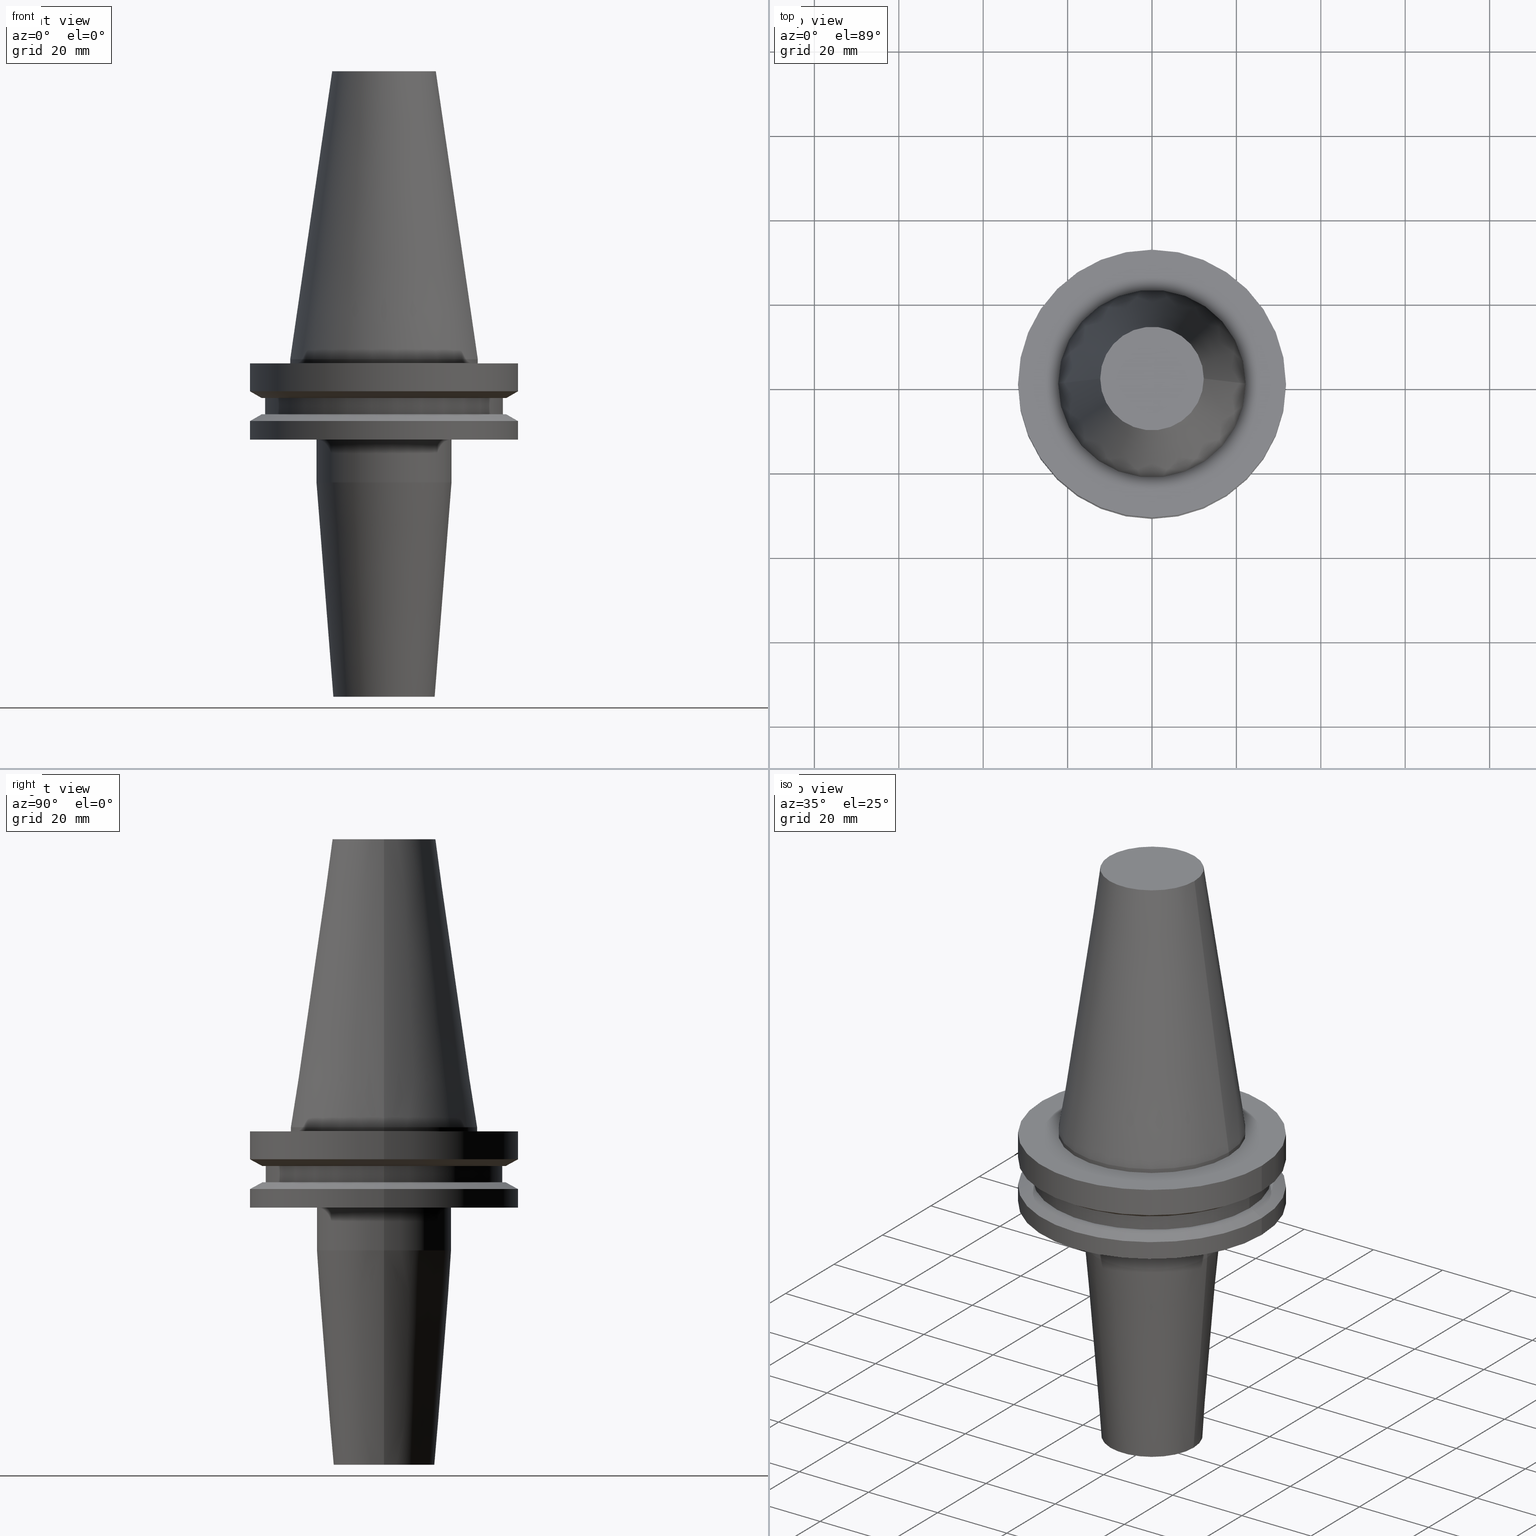
[diagram: canonical four-view strip — front | top / right | iso, engineering-drawing reading convention]
A machine part, canonical four-view strip (front | top / right | iso — engineering-drawing reading convention). The complete STEP part file that produces these views, byte-faithful:
ISO-10303-21;
HEADER;
FILE_DESCRIPTION (( 'STEP AP203' ),
    '1' );
FILE_NAME ('BCV40-SF10-80.STEP',
    '2022-02-23T17:13:12',
    ( '' ),
    ( '' ),
    'SwSTEP 2.0',
    'SolidWorks 2021',
    '' );
FILE_SCHEMA (( 'CONFIG_CONTROL_DESIGN' ));
ENDSEC;

DATA;
#1 = CC_DESIGN_DATE_AND_TIME_ASSIGNMENT ( #401, #222, ( #165 ) ) ;
#2 = EDGE_CURVE ( 'NONE', #573, #775, #335, .T. ) ;
#3 = ORIENTED_EDGE ( 'NONE', *, *, #526, .F. ) ;
#4 = CARTESIAN_POINT ( 'NONE',  ( 0.000000000000000000, 0.000000000000000000, -19.04999999999999716 ) ) ;
#5 = PLANE ( 'NONE',  #393 ) ;
#6 = LINE ( 'NONE', #327, #15 ) ;
#7 = DIRECTION ( 'NONE',  ( 1.000000000000000000, 0.000000000000000000, 0.000000000000000000 ) ) ;
#8 = DIRECTION ( 'NONE',  ( -0.000000000000000000, -0.000000000000000000, 1.000000000000000000 ) ) ;
#9 = CARTESIAN_POINT ( 'NONE',  ( 0.000000000000000000, 0.000000000000000000, 68.25000000000000000 ) ) ;
#10 = VECTOR ( 'NONE', #546, 1000.000000000000000 ) ;
#11 = VECTOR ( 'NONE', #24, 1000.000000000000000 ) ;
#12 = DIRECTION ( 'NONE',  ( 1.000000000000000000, 0.000000000000000000, 0.000000000000000000 ) ) ;
#13 = FACE_OUTER_BOUND ( 'NONE', #513, .T. ) ;
#14 = CARTESIAN_POINT ( 'NONE',  ( 0.000000000000000000, 31.75000000000000000, -0.9999999999999995559 ) ) ;
#15 = VECTOR ( 'NONE', #260, 1000.000000000000000 ) ;
#16 = CARTESIAN_POINT ( 'NONE',  ( 0.000000000000000000, 0.000000000000000000, 0.000000000000000000 ) ) ;
#17 = DIRECTION ( 'NONE',  ( -0.000000000000000000, -0.000000000000000000, 1.000000000000000000 ) ) ;
#18 = EDGE_CURVE ( 'NONE', #686, #191, #608, .T. ) ;
#19 = FACE_OUTER_BOUND ( 'NONE', #757, .T. ) ;
#20 = CC_DESIGN_APPROVAL ( #352, ( #165 ) ) ;
#21 = AXIS2_PLACEMENT_3D ( 'NONE', #583, #310, #602 ) ;
#22 = CARTESIAN_POINT ( 'NONE',  ( 0.000000000000000000, 0.000000000000000000, -80.00000000000000000 ) ) ;
#23 =( NAMED_UNIT ( * ) SI_UNIT ( $, .STERADIAN. ) SOLID_ANGLE_UNIT ( ) );
#24 = DIRECTION ( 'NONE',  ( -0.000000000000000000, -0.000000000000000000, 1.000000000000000000 ) ) ;
#25 = ADVANCED_FACE ( 'NONE', ( #665 ), #738, .T. ) ;
#26 = ORIENTED_EDGE ( 'NONE', *, *, #688, .T. ) ;
#27 = VECTOR ( 'NONE', #412, 1000.000000000000000 ) ;
#28 = CARTESIAN_POINT ( 'NONE',  ( 0.000000000000000000, 0.000000000000000000, 0.000000000000000000 ) ) ;
#29 = CARTESIAN_POINT ( 'NONE',  ( 0.000000000000000000, 31.74999999999999289, -19.04999999999999716 ) ) ;
#30 = EDGE_CURVE ( 'NONE', #737, #215, #153, .T. ) ;
#31 = PERSON_AND_ORGANIZATION ( #373, #626 ) ;
#32 = EDGE_LOOP ( 'NONE', ( #530, #329, #105, #769 ) ) ;
#33 = CARTESIAN_POINT ( 'NONE',  ( -28.17999999999999972, 3.451054679997241634E-15, -13.05499999999999794 ) ) ;
#34 = PERSON_AND_ORGANIZATION_ROLE ( 'design_supplier' ) ;
#35 = ORIENTED_EDGE ( 'NONE', *, *, #526, .T. ) ;
#36 = CIRCLE ( 'NONE', #302, 4.999999999999992895 ) ;
#37 = FACE_OUTER_BOUND ( 'NONE', #410, .T. ) ;
#38 = PERSON_AND_ORGANIZATION_ROLE ( 'creator' ) ;
#39 = VERTEX_POINT ( 'NONE', #730 ) ;
#40 = ORIENTED_EDGE ( 'NONE', *, *, #123, .T. ) ;
#41 = SHAPE_DEFINITION_REPRESENTATION ( #284, #630 ) ;
#42 = SECURITY_CLASSIFICATION ( '', '', #399 ) ;
#43 = ORIENTED_EDGE ( 'NONE', *, *, #2, .F. ) ;
#44 = FACE_OUTER_BOUND ( 'NONE', #72, .T. ) ;
#45 = APPROVAL ( #396, 'UNSPECIFIED' ) ;
#46 = ADVANCED_FACE ( 'NONE', ( #138, #269 ), #131, .F. ) ;
#47 = DIRECTION ( 'NONE',  ( -0.000000000000000000, -0.000000000000000000, 1.000000000000000000 ) ) ;
#48 = VERTEX_POINT ( 'NONE', #609 ) ;
#49 = DIRECTION ( 'NONE',  ( -0.000000000000000000, -0.000000000000000000, 1.000000000000000000 ) ) ;
#50 = EDGE_CURVE ( 'NONE', #333, #342, #238, .T. ) ;
#51 = DIRECTION ( 'NONE',  ( -0.000000000000000000, -0.000000000000000000, 1.000000000000000000 ) ) ;
#52 = ORIENTED_EDGE ( 'NONE', *, *, #341, .T. ) ;
#53 = DIRECTION ( 'NONE',  ( 1.000000000000000000, 0.000000000000000000, 0.000000000000000000 ) ) ;
#54 = DIRECTION ( 'NONE',  ( 0.000000000000000000, 0.000000000000000000, -1.000000000000000000 ) ) ;
#55 = ORIENTED_EDGE ( 'NONE', *, *, #593, .F. ) ;
#56 = LINE ( 'NONE', #433, #27 ) ;
#57 = AXIS2_PLACEMENT_3D ( 'NONE', #59, #308, #768 ) ;
#58 = CARTESIAN_POINT ( 'NONE',  ( 0.000000000000000000, 0.000000000000000000, 68.25000000000000000 ) ) ;
#59 = CARTESIAN_POINT ( 'NONE',  ( 0.000000000000000000, 0.000000000000000000, -19.04999999999999716 ) ) ;
#60 = ORIENTED_EDGE ( 'NONE', *, *, #692, .T. ) ;
#61 = AXIS2_PLACEMENT_3D ( 'NONE', #104, #351, #422 ) ;
#62 = FACE_OUTER_BOUND ( 'NONE', #391, .T. ) ;
#63 = AXIS2_PLACEMENT_3D ( 'NONE', #113, #116, #653 ) ;
#64 = EDGE_LOOP ( 'NONE', ( #541, #229 ) ) ;
#65 = DIRECTION ( 'NONE',  ( -0.1443082272672999711, 0.000000000000000000, -0.9895327864921755756 ) ) ;
#66 = PLANE ( 'NONE',  #434 ) ;
#67 = DIRECTION ( 'NONE',  ( -0.000000000000000000, -0.000000000000000000, 1.000000000000000000 ) ) ;
#68 = DIRECTION ( 'NONE',  ( -0.000000000000000000, -0.000000000000000000, 1.000000000000000000 ) ) ;
#69 = CARTESIAN_POINT ( 'NONE',  ( -4.999999999999988454, 6.123233995736753463E-16, -49.00000000000000000 ) ) ;
#70 = AXIS2_PLACEMENT_3D ( 'NONE', #316, #610, #212 ) ;
#71 = EDGE_CURVE ( 'NONE', #417, #170, #369, .T. ) ;
#72 = EDGE_LOOP ( 'NONE', ( #751, #534, #52, #252 ) ) ;
#73 = PERSON_AND_ORGANIZATION ( #373, #626 ) ;
#74 = FACE_OUTER_BOUND ( 'NONE', #539, .T. ) ;
#75 = CARTESIAN_POINT ( 'NONE',  ( -31.75000000000000000, 3.888253587292846476E-15, -14.65472339340266572 ) ) ;
#76 = LINE ( 'NONE', #664, #543 ) ;
#77 = EDGE_LOOP ( 'NONE', ( #432, #484, #374, #3 ) ) ;
#78 = DIRECTION ( 'NONE',  ( -0.000000000000000000, -0.000000000000000000, 1.000000000000000000 ) ) ;
#79 = CARTESIAN_POINT ( 'NONE',  ( 0.000000000000000000, 0.000000000000000000, -80.00000000000000000 ) ) ;
#80 = ADVANCED_FACE ( 'NONE', ( #673 ), #655, .F. ) ;
#81 = DIRECTION ( 'NONE',  ( 1.000000000000000000, 0.000000000000000000, 0.000000000000000000 ) ) ;
#82 = VERTEX_POINT ( 'NONE', #75 ) ;
#83 = CIRCLE ( 'NONE', #672, 4.999999999999992895 ) ;
#84 = CARTESIAN_POINT ( 'NONE',  ( 0.000000000000000000, 0.000000000000000000, -7.605276606597335842 ) ) ;
#85 = DIRECTION ( 'NONE',  ( 0.000000000000000000, 0.000000000000000000, 1.000000000000000000 ) ) ;
#86 = DIRECTION ( 'NONE',  ( -0.000000000000000000, -0.000000000000000000, 1.000000000000000000 ) ) ;
#87 = CARTESIAN_POINT ( 'NONE',  ( 15.99999999999999289, 0.000000000000000000, -29.17518105529640948 ) ) ;
#88 = APPROVAL_ROLE ( '' ) ;
#89 = DIRECTION ( 'NONE',  ( -1.000000000000000000, 0.000000000000000000, 0.000000000000000000 ) ) ;
#90 = EDGE_LOOP ( 'NONE', ( #712, #638, #124, #520 ) ) ;
#91 = AXIS2_PLACEMENT_3D ( 'NONE', #544, #496, #377 ) ;
#92 = DIRECTION ( 'NONE',  ( -0.000000000000000000, -0.000000000000000000, 1.000000000000000000 ) ) ;
#93 = DATE_TIME_ROLE ( 'classification_date' ) ;
#94 = ORIENTED_EDGE ( 'NONE', *, *, #400, .F. ) ;
#95 = EDGE_LOOP ( 'NONE', ( #195, #591 ) ) ;
#96 = EDGE_CURVE ( 'NONE', #406, #203, #731, .T. ) ;
#97 = EDGE_CURVE ( 'NONE', #417, #177, #458, .T. ) ;
#98 = DIRECTION ( 'NONE',  ( 0.8660254037844387076, 1.060575238724906915E-16, -0.4999999999999998890 ) ) ;
#99 = DATE_AND_TIME ( #742, #491 ) ;
#100 = VECTOR ( 'NONE', #198, 999.9999999999998863 ) ;
#101 = AXIS2_PLACEMENT_3D ( 'NONE', #774, #248, #487 ) ;
#102 = CARTESIAN_POINT ( 'NONE',  ( 0.000000000000000000, 0.000000000000000000, 0.000000000000000000 ) ) ;
#103 = EDGE_LOOP ( 'NONE', ( #199, #236 ) ) ;
#104 = CARTESIAN_POINT ( 'NONE',  ( 0.000000000000000000, 0.000000000000000000, 0.000000000000000000 ) ) ;
#105 = ORIENTED_EDGE ( 'NONE', *, *, #117, .T. ) ;
#106 = AXIS2_PLACEMENT_3D ( 'NONE', #28, #558, #571 ) ;
#107 = EDGE_CURVE ( 'NONE', #258, #577, #254, .T. ) ;
#108 = VECTOR ( 'NONE', #596, 1000.000000000000000 ) ;
#109 = PERSON_AND_ORGANIZATION ( #373, #626 ) ;
#110 = CARTESIAN_POINT ( 'NONE',  ( 0.000000000000000000, 0.000000000000000000, 0.000000000000000000 ) ) ;
#111 = VECTOR ( 'NONE', #479, 1000.000000000000000 ) ;
#112 = ORIENTED_EDGE ( 'NONE', *, *, #217, .F. ) ;
#113 = CARTESIAN_POINT ( 'NONE',  ( 0.000000000000000000, 0.000000000000000000, 0.000000000000000000 ) ) ;
#114 = CARTESIAN_POINT ( 'NONE',  ( 0.000000000000000000, 0.000000000000000000, -19.04999999999999716 ) ) ;
#115 = ORIENTED_EDGE ( 'NONE', *, *, #382, .T. ) ;
#116 = DIRECTION ( 'NONE',  ( -0.000000000000000000, -0.000000000000000000, 1.000000000000000000 ) ) ;
#117 = EDGE_CURVE ( 'NONE', #577, #82, #160, .T. ) ;
#118 = CARTESIAN_POINT ( 'NONE',  ( 0.000000000000000000, 12.27178102086201150, 68.25000000000000000 ) ) ;
#119 = EDGE_LOOP ( 'NONE', ( #409, #134 ) ) ;
#120 = DIRECTION ( 'NONE',  ( -0.000000000000000000, -0.000000000000000000, 1.000000000000000000 ) ) ;
#121 = VERTEX_POINT ( 'NONE', #87 ) ;
#122 = CC_DESIGN_PERSON_AND_ORGANIZATION_ASSIGNMENT ( #73, #674, ( #226 ) ) ;
#123 = EDGE_CURVE ( 'NONE', #177, #417, #144, .T. ) ;
#124 = ORIENTED_EDGE ( 'NONE', *, *, #233, .T. ) ;
#125 = ORIENTED_EDGE ( 'NONE', *, *, #141, .T. ) ;
#126 = DIRECTION ( 'NONE',  ( 1.000000000000000000, 0.000000000000000000, 0.000000000000000000 ) ) ;
#127 = PRODUCT_DEFINITION_FORMATION_WITH_SPECIFIED_SOURCE ( 'ANY', '', #226, .NOT_KNOWN. ) ;
#128 = VECTOR ( 'NONE', #287, 1000.000000000000000 ) ;
#129 = ORIENTED_EDGE ( 'NONE', *, *, #551, .T. ) ;
#130 = ORIENTED_EDGE ( 'NONE', *, *, #319, .T. ) ;
#131 = PLANE ( 'NONE',  #91 ) ;
#132 = LINE ( 'NONE', #255, #659 ) ;
#133 = ADVANCED_FACE ( 'NONE', ( #37 ), #221, .T. ) ;
#134 = ORIENTED_EDGE ( 'NONE', *, *, #697, .F. ) ;
#135 = CARTESIAN_POINT ( 'NONE',  ( -15.99999999999999289, 1.959434878635764343E-15, 0.000000000000000000 ) ) ;
#136 = CARTESIAN_POINT ( 'NONE',  ( 0.000000000000000000, 0.000000000000000000, -1.000000000000000888 ) ) ;
#137 = CYLINDRICAL_SURFACE ( 'NONE', #420, 28.17999999999999972 ) ;
#138 = FACE_BOUND ( 'NONE', #426, .T. ) ;
#139 = CARTESIAN_POINT ( 'NONE',  ( -31.74999999999999289, 3.888253587292845687E-15, -19.04999999999999716 ) ) ;
#140 = CARTESIAN_POINT ( 'NONE',  ( 4.999999999999990230, 0.000000000000000000, 0.000000000000000000 ) ) ;
#141 = EDGE_CURVE ( 'NONE', #82, #577, #563, .T. ) ;
#142 = AXIS2_PLACEMENT_3D ( 'NONE', #246, #300, #53 ) ;
#143 = AXIS2_PLACEMENT_3D ( 'NONE', #242, #364, #720 ) ;
#144 = CIRCLE ( 'NONE', #446, 12.27178102086201150 ) ;
#145 = ORIENTED_EDGE ( 'NONE', *, *, #251, .F. ) ;
#146 = LINE ( 'NONE', #321, #206 ) ;
#147 = DIRECTION ( 'NONE',  ( -0.000000000000000000, -0.000000000000000000, 1.000000000000000000 ) ) ;
#148 = CIRCLE ( 'NONE', #415, 15.99999999999999289 ) ;
#149 = ORIENTED_EDGE ( 'NONE', *, *, #201, .F. ) ;
#150 = EDGE_CURVE ( 'NONE', #506, #244, #452, .T. ) ;
#151 = CARTESIAN_POINT ( 'NONE',  ( -12.27178102086201150, 0.000000000000000000, 68.25000000000000000 ) ) ;
#152 = LINE ( 'NONE', #135, #441 ) ;
#153 = CIRCLE ( 'NONE', #569, 22.22500000000000142 ) ;
#154 = CC_DESIGN_PERSON_AND_ORGANIZATION_ASSIGNMENT ( #31, #34, ( #127 ) ) ;
#155 = DIRECTION ( 'NONE',  ( 1.000000000000000000, 0.000000000000000000, 0.000000000000000000 ) ) ;
#156 = DIRECTION ( 'NONE',  ( 1.000000000000000000, 0.000000000000000000, 0.000000000000000000 ) ) ;
#157 = ADVANCED_FACE ( 'NONE', ( #689 ), #184, .T. ) ;
#158 = ORIENTED_EDGE ( 'NONE', *, *, #771, .T. ) ;
#159 = APPROVAL_PERSON_ORGANIZATION ( #570, #510, #641 ) ;
#160 = CIRCLE ( 'NONE', #403, 31.75000000000000000 ) ;
#161 = DIRECTION ( 'NONE',  ( 1.000000000000000000, 0.000000000000000000, 0.000000000000000000 ) ) ;
#162 = EDGE_LOOP ( 'NONE', ( #722, #60, #455, #207 ) ) ;
#163 = DIRECTION ( 'NONE',  ( 1.000000000000000000, 0.000000000000000000, 0.000000000000000000 ) ) ;
#164 = CALENDAR_DATE ( 2022, 23, 2 ) ;
#165 = PRODUCT_DEFINITION ( 'UNKNOWN', '', #127, #497 ) ;
#166 = CARTESIAN_POINT ( 'NONE',  ( 0.000000000000000000, 0.000000000000000000, 68.25000000000000000 ) ) ;
#167 = APPROVAL_DATE_TIME ( #581, #510 ) ;
#168 = ORIENTED_EDGE ( 'NONE', *, *, #288, .T. ) ;
#169 = ADVANCED_FACE ( 'NONE', ( #225 ), #286, .T. ) ;
#170 = VERTEX_POINT ( 'NONE', #681 ) ;
#171 = COORDINATED_UNIVERSAL_TIME_OFFSET ( 6, 0, .BEHIND. ) ;
#172 = ORIENTED_EDGE ( 'NONE', *, *, #616, .F. ) ;
#173 = DIRECTION ( 'NONE',  ( 1.000000000000000000, 0.000000000000000000, 0.000000000000000000 ) ) ;
#174 = EDGE_CURVE ( 'NONE', #355, #170, #343, .T. ) ;
#175 = PERSON_AND_ORGANIZATION_ROLE ( 'classification_officer' ) ;
#176 = ORIENTED_EDGE ( 'NONE', *, *, #71, .F. ) ;
#177 = VERTEX_POINT ( 'NONE', #151 ) ;
#178 = DIRECTION ( 'NONE',  ( -0.000000000000000000, -0.000000000000000000, 1.000000000000000000 ) ) ;
#179 = DIRECTION ( 'NONE',  ( 1.000000000000000000, 0.000000000000000000, 0.000000000000000000 ) ) ;
#180 = AXIS2_PLACEMENT_3D ( 'NONE', #614, #390, #156 ) ;
#181 = ORIENTED_EDGE ( 'NONE', *, *, #382, .F. ) ;
#182 = FACE_OUTER_BOUND ( 'NONE', #691, .T. ) ;
#183 = EDGE_CURVE ( 'NONE', #121, #39, #449, .T. ) ;
#184 = CONICAL_SURFACE ( 'NONE', #617, 28.97919780457007732, 1.047197551196598297 ) ;
#185 = DIRECTION ( 'NONE',  ( -0.000000000000000000, -0.000000000000000000, 1.000000000000000000 ) ) ;
#186 = ORIENTED_EDGE ( 'NONE', *, *, #231, .F. ) ;
#187 = CARTESIAN_POINT ( 'NONE',  ( 0.000000000000000000, 0.000000000000000000, -1.000000000000000888 ) ) ;
#188 = DIRECTION ( 'NONE',  ( -1.000000000000000000, 0.000000000000000000, -0.000000000000000000 ) ) ;
#189 = ORIENTED_EDGE ( 'NONE', *, *, #451, .T. ) ;
#190 = DIRECTION ( 'NONE',  ( -0.000000000000000000, -0.000000000000000000, 1.000000000000000000 ) ) ;
#191 = VERTEX_POINT ( 'NONE', #512 ) ;
#192 = ORIENTED_EDGE ( 'NONE', *, *, #743, .T. ) ;
#193 = ORIENTED_EDGE ( 'NONE', *, *, #436, .F. ) ;
#194 = CARTESIAN_POINT ( 'NONE',  ( 0.000000000000000000, 0.000000000000000000, 68.25000000000000000 ) ) ;
#195 = ORIENTED_EDGE ( 'NONE', *, *, #231, .T. ) ;
#196 = LINE ( 'NONE', #470, #511 ) ;
#197 = CARTESIAN_POINT ( 'NONE',  ( 0.000000000000000000, 0.000000000000000000, -9.204999999999991189 ) ) ;
#198 = DIRECTION ( 'NONE',  ( 0.07845909572783764385, 0.000000000000000000, 0.9969173337331286300 ) ) ;
#199 = ORIENTED_EDGE ( 'NONE', *, *, #695, .T. ) ;
#200 = DIRECTION ( 'NONE',  ( 1.000000000000000000, 0.000000000000000000, 0.000000000000000000 ) ) ;
#201 = EDGE_CURVE ( 'NONE', #244, #538, #637, .T. ) ;
#202 = FACE_OUTER_BOUND ( 'NONE', #473, .T. ) ;
#203 = VERTEX_POINT ( 'NONE', #33 ) ;
#204 = MECHANICAL_CONTEXT ( 'NONE', #331, 'mechanical' ) ;
#205 = DIRECTION ( 'NONE',  ( -1.000000000000000000, 0.000000000000000000, 0.000000000000000000 ) ) ;
#206 = VECTOR ( 'NONE', #444, 1000.000000000000000 ) ;
#207 = ORIENTED_EDGE ( 'NONE', *, *, #551, .F. ) ;
#208 = PERSON_AND_ORGANIZATION ( #373, #626 ) ;
#209 = FACE_OUTER_BOUND ( 'NONE', #438, .T. ) ;
#210 = AXIS2_PLACEMENT_3D ( 'NONE', #386, #78, #155 ) ;
#211 = CC_DESIGN_PERSON_AND_ORGANIZATION_ASSIGNMENT ( #230, #175, ( #42 ) ) ;
#212 = DIRECTION ( 'NONE',  ( -1.000000000000000000, 0.000000000000000000, 0.000000000000000000 ) ) ;
#213 = DIRECTION ( 'NONE',  ( 1.000000000000000000, 0.000000000000000000, 0.000000000000000000 ) ) ;
#214 = CLOSED_SHELL ( 'NONE', ( #515, #461, #301, #599, #223, #267, #423, #535, #635, #728, #25, #709, #759, #133, #392, #46, #297, #654, #157, #353, #411, #385, #245, #169, #272, #80, #562 ) ) ;
#215 = VERTEX_POINT ( 'NONE', #514 ) ;
#216 = FACE_OUTER_BOUND ( 'NONE', #488, .T. ) ;
#217 = EDGE_CURVE ( 'NONE', #191, #686, #508, .T. ) ;
#218 = FACE_OUTER_BOUND ( 'NONE', #663, .T. ) ;
#219 = VERTEX_POINT ( 'NONE', #687 ) ;
#220 = CARTESIAN_POINT ( 'NONE',  ( 0.000000000000000000, 0.000000000000000000, -14.65472339340266572 ) ) ;
#221 = CYLINDRICAL_SURFACE ( 'NONE', #745, 31.75000000000000000 ) ;
#222 = DATE_TIME_ROLE ( 'creation_date' ) ;
#223 = ADVANCED_FACE ( 'NONE', ( #216 ), #628, .T. ) ;
#224 = CARTESIAN_POINT ( 'NONE',  ( 0.000000000000000000, 4.999999999999988454, -49.00000000000000000 ) ) ;
#225 = FACE_OUTER_BOUND ( 'NONE', #77, .T. ) ;
#226 = PRODUCT ( 'BCV40-SF10-80', 'BCV40-SF10-80', '', ( #204 ) ) ;
#227 = ORIENTED_EDGE ( 'NONE', *, *, #174, .F. ) ;
#228 = EDGE_CURVE ( 'NONE', #170, #355, #537, .T. ) ;
#229 = ORIENTED_EDGE ( 'NONE', *, *, #50, .T. ) ;
#230 = PERSON_AND_ORGANIZATION ( #373, #626 ) ;
#231 = EDGE_CURVE ( 'NONE', #371, #359, #566, .T. ) ;
#232 = CIRCLE ( 'NONE', #143, 28.97919780457007732 ) ;
#233 = EDGE_CURVE ( 'NONE', #538, #371, #56, .T. ) ;
#234 = CALENDAR_DATE ( 2022, 23, 2 ) ;
#235 = PRODUCT_RELATED_PRODUCT_CATEGORY ( 'detail', '', ( #226 ) ) ;
#236 = ORIENTED_EDGE ( 'NONE', *, *, #642, .T. ) ;
#237 = CYLINDRICAL_SURFACE ( 'NONE', #694, 28.17999999999999972 ) ;
#238 = CIRCLE ( 'NONE', #668, 15.99999999999999289 ) ;
#239 = CARTESIAN_POINT ( 'NONE',  ( 0.000000000000000000, 28.97919780457007732, -9.204999999999996518 ) ) ;
#240 = ORIENTED_EDGE ( 'NONE', *, *, #436, .T. ) ;
#241 = CARTESIAN_POINT ( 'NONE',  ( -31.75000000000000000, 3.888253587292846476E-15, -7.605276606597335842 ) ) ;
#242 = CARTESIAN_POINT ( 'NONE',  ( 0.000000000000000000, 0.000000000000000000, -9.205000000000005400 ) ) ;
#243 = VECTOR ( 'NONE', #648, 1000.000000000000000 ) ;
#244 = VERTEX_POINT ( 'NONE', #241 ) ;
#245 = ADVANCED_FACE ( 'NONE', ( #182 ), #646, .T. ) ;
#246 = CARTESIAN_POINT ( 'NONE',  ( 0.000000000000000000, 0.000000000000000000, -9.205000000000005400 ) ) ;
#247 = CIRCLE ( 'NONE', #696, 31.75000000000000000 ) ;
#248 = DIRECTION ( 'NONE',  ( -0.000000000000000000, -0.000000000000000000, 1.000000000000000000 ) ) ;
#249 = ORIENTED_EDGE ( 'NONE', *, *, #478, .F. ) ;
#250 = CARTESIAN_POINT ( 'NONE',  ( 0.000000000000000000, 0.000000000000000000, -49.00000000000000000 ) ) ;
#251 = EDGE_CURVE ( 'NONE', #538, #244, #247, .T. ) ;
#252 = ORIENTED_EDGE ( 'NONE', *, *, #18, .F. ) ;
#253 = ORIENTED_EDGE ( 'NONE', *, *, #454, .T. ) ;
#254 = LINE ( 'NONE', #277, #767 ) ;
#255 = CARTESIAN_POINT ( 'NONE',  ( -22.22500000000000142, 0.000000000000000000, 0.000000000000000000 ) ) ;
#256 = ORIENTED_EDGE ( 'NONE', *, *, #96, .T. ) ;
#257 = CARTESIAN_POINT ( 'NONE',  ( 0.000000000000000000, 0.000000000000000000, 68.25000000000000000 ) ) ;
#258 = VERTEX_POINT ( 'NONE', #347 ) ;
#259 = CARTESIAN_POINT ( 'NONE',  ( 0.000000000000000000, 0.000000000000000000, -13.05499999999999794 ) ) ;
#260 = DIRECTION ( 'NONE',  ( -0.000000000000000000, -0.000000000000000000, 1.000000000000000000 ) ) ;
#261 = CONICAL_SURFACE ( 'NONE', #575, 31.75000000000000000, 1.047197551196597853 ) ;
#262 = EDGE_LOOP ( 'NONE', ( #710, #26 ) ) ;
#263 = DIRECTION ( 'NONE',  ( 1.000000000000000000, 0.000000000000000000, 0.000000000000000000 ) ) ;
#264 = CIRCLE ( 'NONE', #525, 28.97919780457008088 ) ;
#265 = CYLINDRICAL_SURFACE ( 'NONE', #365, 22.22500000000000142 ) ;
#266 = DIRECTION ( 'NONE',  ( -0.000000000000000000, -0.000000000000000000, 1.000000000000000000 ) ) ;
#267 = ADVANCED_FACE ( 'NONE', ( #536 ), #597, .T. ) ;
#268 = DIRECTION ( 'NONE',  ( 0.000000000000000000, 0.000000000000000000, -1.000000000000000000 ) ) ;
#269 = FACE_OUTER_BOUND ( 'NONE', #262, .T. ) ;
#270 = FACE_BOUND ( 'NONE', #64, .T. ) ;
#271 = DIRECTION ( 'NONE',  ( -0.000000000000000000, -0.000000000000000000, 1.000000000000000000 ) ) ;
#272 = ADVANCED_FACE ( 'NONE', ( #62, #770 ), #542, .F. ) ;
#273 = CIRCLE ( 'NONE', #180, 31.75000000000000000 ) ;
#274 = AXIS2_PLACEMENT_3D ( 'NONE', #766, #418, #762 ) ;
#275 = AXIS2_PLACEMENT_3D ( 'NONE', #79, #439, #200 ) ;
#276 = AXIS2_PLACEMENT_3D ( 'NONE', #323, #363, #598 ) ;
#277 = CARTESIAN_POINT ( 'NONE',  ( 31.75000000000000000, 3.888253587292846476E-15, -14.65472339340266572 ) ) ;
#278 = CALENDAR_DATE ( 2022, 23, 2 ) ;
#279 = DIRECTION ( 'NONE',  ( -0.000000000000000000, -0.000000000000000000, 1.000000000000000000 ) ) ;
#280 = ORIENTED_EDGE ( 'NONE', *, *, #183, .F. ) ;
#281 = DIRECTION ( 'NONE',  ( -0.000000000000000000, -0.000000000000000000, 1.000000000000000000 ) ) ;
#282 = CARTESIAN_POINT ( 'NONE',  ( 31.75000000000000000, 0.000000000000000000, 68.25000000000000000 ) ) ;
#283 = FACE_OUTER_BOUND ( 'NONE', #119, .T. ) ;
#284 = PRODUCT_DEFINITION_SHAPE ( 'NONE', 'NONE',  #165 ) ;
#285 = CIRCLE ( 'NONE', #755, 15.99999999999999289 ) ;
#286 = CONICAL_SURFACE ( 'NONE', #405, 11.99999999999999289, 0.07853981633973751431 ) ;
#287 = DIRECTION ( 'NONE',  ( -0.8660254037844389297, 1.060575238724907285E-16, 0.4999999999999995004 ) ) ;
#288 = EDGE_CURVE ( 'NONE', #506, #705, #574, .T. ) ;
#289 = AXIS2_PLACEMENT_3D ( 'NONE', #556, #17, #619 ) ;
#290 = EDGE_LOOP ( 'NONE', ( #40, #295 ) ) ;
#291 = DIRECTION ( 'NONE',  ( 1.000000000000000000, 0.000000000000000000, 0.000000000000000000 ) ) ;
#292 = AXIS2_PLACEMENT_3D ( 'NONE', #564, #281, #161 ) ;
#293 = CARTESIAN_POINT ( 'NONE',  ( 0.000000000000000000, 0.000000000000000000, 68.25000000000000000 ) ) ;
#294 = CARTESIAN_POINT ( 'NONE',  ( -11.99999999999999289, 1.714505518806293849E-15, -80.00000000000000000 ) ) ;
#295 = ORIENTED_EDGE ( 'NONE', *, *, #97, .T. ) ;
#296 = DIRECTION ( 'NONE',  ( 1.000000000000000000, 0.000000000000000000, 0.000000000000000000 ) ) ;
#297 = ADVANCED_FACE ( 'NONE', ( #44 ), #237, .T. ) ;
#298 = DIRECTION ( 'NONE',  ( 1.000000000000000000, 0.000000000000000000, 0.000000000000000000 ) ) ;
#299 = ORIENTED_EDGE ( 'NONE', *, *, #117, .F. ) ;
#300 = DIRECTION ( 'NONE',  ( -0.000000000000000000, -0.000000000000000000, 1.000000000000000000 ) ) ;
#301 = ADVANCED_FACE ( 'NONE', ( #474 ), #715, .T. ) ;
#302 = AXIS2_PLACEMENT_3D ( 'NONE', #493, #47, #425 ) ;
#303 = ORIENTED_EDGE ( 'NONE', *, *, #50, .F. ) ;
#304 = ORIENTED_EDGE ( 'NONE', *, *, #743, .F. ) ;
#305 = ORIENTED_EDGE ( 'NONE', *, *, #233, .F. ) ;
#306 = AXIS2_PLACEMENT_3D ( 'NONE', #84, #330, #336 ) ;
#307 = DIRECTION ( 'NONE',  ( -0.000000000000000000, -0.000000000000000000, 1.000000000000000000 ) ) ;
#308 = DIRECTION ( 'NONE',  ( -0.000000000000000000, -0.000000000000000000, 1.000000000000000000 ) ) ;
#309 = ORIENTED_EDGE ( 'NONE', *, *, #71, .T. ) ;
#310 = DIRECTION ( 'NONE',  ( -0.000000000000000000, -0.000000000000000000, 1.000000000000000000 ) ) ;
#311 = EDGE_LOOP ( 'NONE', ( #55, #315 ) ) ;
#312 = CARTESIAN_POINT ( 'NONE',  ( 22.22500000000000142, 2.721777511104992849E-15, 0.000000000000000000 ) ) ;
#313 = FACE_OUTER_BOUND ( 'NONE', #555, .T. ) ;
#314 = CARTESIAN_POINT ( 'NONE',  ( 4.999999999999992895, 0.000000000000000000, -80.00000000000000000 ) ) ;
#315 = ORIENTED_EDGE ( 'NONE', *, *, #288, .F. ) ;
#316 = CARTESIAN_POINT ( 'NONE',  ( 0.000000000000000000, 0.000000000000000000, 0.000000000000000000 ) ) ;
#317 = LINE ( 'NONE', #620, #394 ) ;
#318 = CIRCLE ( 'NONE', #57, 31.74999999999999289 ) ;
#319 = EDGE_CURVE ( 'NONE', #48, #481, #679, .T. ) ;
#320 = ORIENTED_EDGE ( 'NONE', *, *, #183, .T. ) ;
#321 = CARTESIAN_POINT ( 'NONE',  ( 28.97919780457007732, 0.000000000000000000, -9.205000000000005400 ) ) ;
#322 = CARTESIAN_POINT ( 'NONE',  ( 31.75000000000000000, 0.000000000000000000, -1.000000000000000888 ) ) ;
#323 = CARTESIAN_POINT ( 'NONE',  ( 0.000000000000000000, 0.000000000000000000, -13.05499999999999794 ) ) ;
#324 = CARTESIAN_POINT ( 'NONE',  ( -31.75000000000000000, 3.888253587292846476E-15, -1.000000000000000888 ) ) ;
#325 = DIRECTION ( 'NONE',  ( 1.000000000000000000, 0.000000000000000000, 0.000000000000000000 ) ) ;
#326 = APPROVAL_ROLE ( '' ) ;
#327 = CARTESIAN_POINT ( 'NONE',  ( -31.75000000000000000, 3.888253587292846476E-15, 68.25000000000000000 ) ) ;
#328 = LOCAL_TIME ( 11, 13, 12.00000000000000000, #559 ) ;
#329 = ORIENTED_EDGE ( 'NONE', *, *, #107, .T. ) ;
#330 = DIRECTION ( 'NONE',  ( -0.000000000000000000, -0.000000000000000000, 1.000000000000000000 ) ) ;
#331 = APPLICATION_CONTEXT ( 'configuration controlled 3d designs of mechanical parts and assemblies' ) ;
#332 = CARTESIAN_POINT ( 'NONE',  ( 22.22500000000000142, 0.000000000000000000, -1.000000000000000888 ) ) ;
#333 = VERTEX_POINT ( 'NONE', #592 ) ;
#334 = CARTESIAN_POINT ( 'NONE',  ( 0.000000000000000000, 0.000000000000000000, -29.17518105529640948 ) ) ;
#335 = CIRCLE ( 'NONE', #357, 31.74999999999999289 ) ;
#336 = DIRECTION ( 'NONE',  ( 1.000000000000000000, 0.000000000000000000, 0.000000000000000000 ) ) ;
#337 = CARTESIAN_POINT ( 'NONE',  ( 31.75000000000000000, 0.000000000000000000, -7.605276606597335842 ) ) ;
#338 = AXIS2_PLACEMENT_3D ( 'NONE', #118, #54, #188 ) ;
#339 = AXIS2_PLACEMENT_3D ( 'NONE', #58, #307, #773 ) ;
#340 = CARTESIAN_POINT ( 'NONE',  ( 0.000000000000000000, 0.000000000000000000, -14.65472339340266572 ) ) ;
#341 = EDGE_CURVE ( 'NONE', #406, #191, #482, .T. ) ;
#342 = VERTEX_POINT ( 'NONE', #708 ) ;
#343 = CIRCLE ( 'NONE', #106, 22.22500000000000142 ) ;
#344 = PERSON_AND_ORGANIZATION_ROLE ( 'creator' ) ;
#345 = EDGE_CURVE ( 'NONE', #660, #82, #196, .T. ) ;
#346 = ORIENTED_EDGE ( 'NONE', *, *, #341, .F. ) ;
#347 = CARTESIAN_POINT ( 'NONE',  ( 28.97919780457008088, 3.718590885307660666E-15, -13.05499999999999794 ) ) ;
#348 = CC_DESIGN_SECURITY_CLASSIFICATION ( #42, ( #127 ) ) ;
#349 = LINE ( 'NONE', #527, #111 ) ;
#350 = ORIENTED_EDGE ( 'NONE', *, *, #217, .T. ) ;
#351 = DIRECTION ( 'NONE',  ( -0.000000000000000000, -0.000000000000000000, 1.000000000000000000 ) ) ;
#352 = APPROVAL ( #387, 'UNSPECIFIED' ) ;
#353 = ADVANCED_FACE ( 'NONE', ( #524 ), #758, .T. ) ;
#354 = CARTESIAN_POINT ( 'NONE',  ( -28.97919780457008088, 0.000000000000000000, -13.05499999999999794 ) ) ;
#355 = VERTEX_POINT ( 'NONE', #531 ) ;
#356 = CARTESIAN_POINT ( 'NONE',  ( 28.17999999999999972, 0.000000000000000000, 68.25000000000000000 ) ) ;
#357 = AXIS2_PLACEMENT_3D ( 'NONE', #4, #383, #12 ) ;
#358 = DIRECTION ( 'NONE',  ( -0.000000000000000000, -0.000000000000000000, 1.000000000000000000 ) ) ;
#359 = VERTEX_POINT ( 'NONE', #324 ) ;
#360 = ORIENTED_EDGE ( 'NONE', *, *, #616, .T. ) ;
#361 = AXIS2_PLACEMENT_3D ( 'NONE', #224, #639, #585 ) ;
#362 = EDGE_CURVE ( 'NONE', #645, #39, #76, .T. ) ;
#363 = DIRECTION ( 'NONE',  ( -0.000000000000000000, -0.000000000000000000, 1.000000000000000000 ) ) ;
#364 = DIRECTION ( 'NONE',  ( -0.000000000000000000, -0.000000000000000000, 1.000000000000000000 ) ) ;
#365 = AXIS2_PLACEMENT_3D ( 'NONE', #379, #271, #509 ) ;
#366 = ORIENTED_EDGE ( 'NONE', *, *, #754, .T. ) ;
#367 = CARTESIAN_POINT ( 'NONE',  ( 0.000000000000000000, 0.000000000000000000, -7.605276606597335842 ) ) ;
#368 = ORIENTED_EDGE ( 'NONE', *, *, #400, .T. ) ;
#369 = LINE ( 'NONE', #312, #760 ) ;
#370 = FACE_OUTER_BOUND ( 'NONE', #311, .T. ) ;
#371 = VERTEX_POINT ( 'NONE', #322 ) ;
#372 = CARTESIAN_POINT ( 'NONE',  ( 0.000000000000000000, 0.000000000000000000, -13.05499999999999794 ) ) ;
#373 = PERSON ( 'UNSPECIFIED', 'UNSPECIFIED', 'UNSPECIFIED', ('UNSPECIFIED'), ('UNSPECIFIED'), ('UNSPECIFIED') ) ;
#374 = ORIENTED_EDGE ( 'NONE', *, *, #505, .T. ) ;
#375 = CARTESIAN_POINT ( 'NONE',  ( 0.000000000000000000, 0.000000000000000000, 0.000000000000000000 ) ) ;
#376 = CARTESIAN_POINT ( 'NONE',  ( -28.97919780457007732, 3.718590885307660666E-15, -9.205000000000005400 ) ) ;
#377 = DIRECTION ( 'NONE',  ( -1.000000000000000000, 0.000000000000000000, -0.000000000000000000 ) ) ;
#378 = APPLICATION_PROTOCOL_DEFINITION ( 'international standard', 'config_control_design', 1994, #331 ) ;
#379 = CARTESIAN_POINT ( 'NONE',  ( 0.000000000000000000, 0.000000000000000000, 68.25000000000000000 ) ) ;
#380 = AXIS2_PLACEMENT_3D ( 'NONE', #259, #431, #416 ) ;
#381 = AXIS2_PLACEMENT_3D ( 'NONE', #719, #723, #618 ) ;
#382 = EDGE_CURVE ( 'NONE', #121, #342, #615, .T. ) ;
#383 = DIRECTION ( 'NONE',  ( -0.000000000000000000, -0.000000000000000000, 1.000000000000000000 ) ) ;
#384 = DIRECTION ( 'NONE',  ( 0.000000000000000000, 0.000000000000000000, -1.000000000000000000 ) ) ;
#385 = ADVANCED_FACE ( 'NONE', ( #19 ), #265, .T. ) ;
#386 = CARTESIAN_POINT ( 'NONE',  ( 0.000000000000000000, 0.000000000000000000, -29.17518105529640948 ) ) ;
#387 = APPROVAL_STATUS ( 'not_yet_approved' ) ;
#388 = FACE_OUTER_BOUND ( 'NONE', #95, .T. ) ;
#389 = DIRECTION ( 'NONE',  ( -0.000000000000000000, -0.000000000000000000, 1.000000000000000000 ) ) ;
#390 = DIRECTION ( 'NONE',  ( -0.000000000000000000, -0.000000000000000000, 1.000000000000000000 ) ) ;
#391 = EDGE_LOOP ( 'NONE', ( #443, #428 ) ) ;
#392 = ADVANCED_FACE ( 'NONE', ( #74 ), #494, .T. ) ;
#393 = AXIS2_PLACEMENT_3D ( 'NONE', #239, #656, #179 ) ;
#394 = VECTOR ( 'NONE', #503, 1000.000000000000000 ) ;
#395 = CARTESIAN_POINT ( 'NONE',  ( -28.97919780457007732, 3.548928183322474856E-15, -9.205000000000005400 ) ) ;
#396 = APPROVAL_STATUS ( 'not_yet_approved' ) ;
#397 = ORIENTED_EDGE ( 'NONE', *, *, #771, .F. ) ;
#398 = UNCERTAINTY_MEASURE_WITH_UNIT (LENGTH_MEASURE( 1.000000000000000082E-05 ), #500, 'distance_accuracy_value', 'NONE');
#399 = SECURITY_CLASSIFICATION_LEVEL ( 'unclassified' ) ;
#400 = EDGE_CURVE ( 'NONE', #219, #481, #317, .T. ) ;
#401 = DATE_AND_TIME ( #756, #464 ) ;
#402 = VECTOR ( 'NONE', #68, 1000.000000000000000 ) ;
#403 = AXIS2_PLACEMENT_3D ( 'NONE', #340, #741, #739 ) ;
#404 = AXIS2_PLACEMENT_3D ( 'NONE', #293, #413, #463 ) ;
#405 = AXIS2_PLACEMENT_3D ( 'NONE', #22, #389, #453 ) ;
#406 = VERTEX_POINT ( 'NONE', #550 ) ;
#407 = PERSON_AND_ORGANIZATION ( #373, #626 ) ;
#408 = APPLICATION_CONTEXT ( 'configuration controlled 3d designs of mechanical parts and assemblies' ) ;
#409 = ORIENTED_EDGE ( 'NONE', *, *, #319, .F. ) ;
#410 = EDGE_LOOP ( 'NONE', ( #711, #613, #192, #587 ) ) ;
#411 = ADVANCED_FACE ( 'NONE', ( #450, #388 ), #66, .F. ) ;
#412 = DIRECTION ( 'NONE',  ( -0.000000000000000000, -0.000000000000000000, 1.000000000000000000 ) ) ;
#413 = DIRECTION ( 'NONE',  ( -0.000000000000000000, -0.000000000000000000, 1.000000000000000000 ) ) ;
#414 = AXIS2_PLACEMENT_3D ( 'NONE', #565, #8, #622 ) ;
#415 = AXIS2_PLACEMENT_3D ( 'NONE', #334, #521, #173 ) ;
#416 = DIRECTION ( 'NONE',  ( 1.000000000000000000, 0.000000000000000000, 0.000000000000000000 ) ) ;
#417 = VERTEX_POINT ( 'NONE', #437 ) ;
#418 = DIRECTION ( 'NONE',  ( 0.000000000000000000, -0.000000000000000000, 1.000000000000000000 ) ) ;
#419 = EDGE_CURVE ( 'NONE', #660, #258, #264, .T. ) ;
#420 = AXIS2_PLACEMENT_3D ( 'NONE', #9, #440, #667 ) ;
#421 = EDGE_LOOP ( 'NONE', ( #366, #632, #280, #601 ) ) ;
#422 = DIRECTION ( 'NONE',  ( 1.000000000000000000, 0.000000000000000000, 0.000000000000000000 ) ) ;
#423 = ADVANCED_FACE ( 'NONE', ( #209 ), #137, .T. ) ;
#424 = CARTESIAN_POINT ( 'NONE',  ( 0.000000000000000000, 0.000000000000000000, -19.04999999999999716 ) ) ;
#425 = DIRECTION ( 'NONE',  ( 1.000000000000000000, 0.000000000000000000, 0.000000000000000000 ) ) ;
#426 = EDGE_LOOP ( 'NONE', ( #652, #249 ) ) ;
#427 = DIRECTION ( 'NONE',  ( -0.8660254037844387076, 0.000000000000000000, -0.4999999999999998890 ) ) ;
#428 = ORIENTED_EDGE ( 'NONE', *, *, #718, .F. ) ;
#429 = LOCAL_TIME ( 11, 13, 12.00000000000000000, #633 ) ;
#430 = EDGE_LOOP ( 'NONE', ( #707, #168, #158, #149 ) ) ;
#431 = DIRECTION ( 'NONE',  ( -0.000000000000000000, -0.000000000000000000, 1.000000000000000000 ) ) ;
#432 = ORIENTED_EDGE ( 'NONE', *, *, #362, .F. ) ;
#433 = CARTESIAN_POINT ( 'NONE',  ( 31.75000000000000000, 0.000000000000000000, 68.25000000000000000 ) ) ;
#434 = AXIS2_PLACEMENT_3D ( 'NONE', #14, #268, #501 ) ;
#435 = DIRECTION ( 'NONE',  ( -1.000000000000000000, 0.000000000000000000, 0.000000000000000000 ) ) ;
#436 = EDGE_CURVE ( 'NONE', #486, #48, #677, .T. ) ;
#437 = CARTESIAN_POINT ( 'NONE',  ( 12.27178102086201150, 2.112318622904291439E-15, 68.25000000000000000 ) ) ;
#438 = EDGE_LOOP ( 'NONE', ( #256, #568, #112, #346 ) ) ;
#439 = DIRECTION ( 'NONE',  ( -0.000000000000000000, -0.000000000000000000, 1.000000000000000000 ) ) ;
#440 = DIRECTION ( 'NONE',  ( -0.000000000000000000, -0.000000000000000000, 1.000000000000000000 ) ) ;
#441 = VECTOR ( 'NONE', #623, 1000.000000000000000 ) ;
#442 = CC_DESIGN_PERSON_AND_ORGANIZATION_ASSIGNMENT ( #407, #344, ( #165 ) ) ;
#443 = ORIENTED_EDGE ( 'NONE', *, *, #754, .F. ) ;
#444 = DIRECTION ( 'NONE',  ( 0.8660254037844389297, 0.000000000000000000, 0.4999999999999995004 ) ) ;
#445 = CARTESIAN_POINT ( 'NONE',  ( 0.000000000000000000, 0.000000000000000000, -13.05499999999999794 ) ) ;
#446 = AXIS2_PLACEMENT_3D ( 'NONE', #166, #92, #325 ) ;
#447 = ORIENTED_EDGE ( 'NONE', *, *, #30, .F. ) ;
#448 = DIRECTION ( 'NONE',  ( 1.000000000000000000, 0.000000000000000000, 0.000000000000000000 ) ) ;
#449 = CIRCLE ( 'NONE', #210, 15.99999999999999289 ) ;
#450 = FACE_BOUND ( 'NONE', #580, .T. ) ;
#451 = EDGE_CURVE ( 'NONE', #244, #359, #6, .T. ) ;
#452 = LINE ( 'NONE', #395, #128 ) ;
#453 = DIRECTION ( 'NONE',  ( 1.000000000000000000, 0.000000000000000000, 0.000000000000000000 ) ) ;
#454 = EDGE_CURVE ( 'NONE', #39, #333, #152, .T. ) ;
#455 = ORIENTED_EDGE ( 'NONE', *, *, #228, .F. ) ;
#456 = DIRECTION ( 'NONE',  ( 0.000000000000000000, 0.000000000000000000, -1.000000000000000000 ) ) ;
#457 = AXIS2_PLACEMENT_3D ( 'NONE', #194, #51, #666 ) ;
#458 = CIRCLE ( 'NONE', #339, 12.27178102086201150 ) ;
#459 = AXIS2_PLACEMENT_3D ( 'NONE', #102, #86, #690 ) ;
#460 = DIRECTION ( 'NONE',  ( -0.000000000000000000, -0.000000000000000000, 1.000000000000000000 ) ) ;
#461 = ADVANCED_FACE ( 'NONE', ( #736 ), #462, .T. ) ;
#462 = CONICAL_SURFACE ( 'NONE', #750, 11.99999999999999289, 0.07853981633973751431 ) ;
#463 = DIRECTION ( 'NONE',  ( 1.000000000000000000, 0.000000000000000000, 0.000000000000000000 ) ) ;
#464 = LOCAL_TIME ( 11, 13, 12.00000000000000000, #748 ) ;
#465 = AXIS2_PLACEMENT_3D ( 'NONE', #747, #460, #676 ) ;
#466 = COORDINATED_UNIVERSAL_TIME_OFFSET ( 6, 0, .BEHIND. ) ;
#467 = ORIENTED_EDGE ( 'NONE', *, *, #107, .F. ) ;
#468 = AXIS2_PLACEMENT_3D ( 'NONE', #110, #190, #658 ) ;
#469 = ORIENTED_EDGE ( 'NONE', *, *, #345, .T. ) ;
#470 = CARTESIAN_POINT ( 'NONE',  ( -31.75000000000000000, 0.000000000000000000, -14.65472339340266572 ) ) ;
#471 = EDGE_CURVE ( 'NONE', #203, #686, #725, .T. ) ;
#472 = FACE_BOUND ( 'NONE', #657, .T. ) ;
#473 = EDGE_LOOP ( 'NONE', ( #644, #368, #717, #193 ) ) ;
#474 = FACE_OUTER_BOUND ( 'NONE', #604, .T. ) ;
#475 = CIRCLE ( 'NONE', #380, 28.97919780457008088 ) ;
#476 = CARTESIAN_POINT ( 'NONE',  ( 0.000000000000000000, 0.000000000000000000, -49.00000000000000000 ) ) ;
#477 = ORIENTED_EDGE ( 'NONE', *, *, #251, .T. ) ;
#478 = EDGE_CURVE ( 'NONE', #203, #406, #480, .T. ) ;
#479 = DIRECTION ( 'NONE',  ( -0.000000000000000000, -0.000000000000000000, 1.000000000000000000 ) ) ;
#480 = CIRCLE ( 'NONE', #678, 28.17999999999999972 ) ;
#481 = VERTEX_POINT ( 'NONE', #69 ) ;
#482 = LINE ( 'NONE', #356, #108 ) ;
#483 = AXIS2_PLACEMENT_3D ( 'NONE', #197, #661, #548 ) ;
#484 = ORIENTED_EDGE ( 'NONE', *, *, #718, .T. ) ;
#485 = VERTEX_POINT ( 'NONE', #607 ) ;
#486 = VERTEX_POINT ( 'NONE', #314 ) ;
#487 = DIRECTION ( 'NONE',  ( 1.000000000000000000, 0.000000000000000000, 0.000000000000000000 ) ) ;
#488 = EDGE_LOOP ( 'NONE', ( #477, #189, #186, #305 ) ) ;
#489 = DIRECTION ( 'NONE',  ( 1.000000000000000000, 0.000000000000000000, 0.000000000000000000 ) ) ;
#490 = ORIENTED_EDGE ( 'NONE', *, *, #733, .F. ) ;
#491 = LOCAL_TIME ( 11, 13, 12.00000000000000000, #466 ) ;
#492 = DIRECTION ( 'NONE',  ( 0.1443082272672999711, 1.767266086135276757E-17, -0.9895327864921755756 ) ) ;
#493 = CARTESIAN_POINT ( 'NONE',  ( 0.000000000000000000, 0.000000000000000000, -80.00000000000000000 ) ) ;
#494 = CONICAL_SURFACE ( 'NONE', #746, 31.75000000000000000, 1.047197551196597853 ) ;
#495 = CARTESIAN_POINT ( 'NONE',  ( 11.99999999999999289, 0.000000000000000000, -80.00000000000000000 ) ) ;
#496 = DIRECTION ( 'NONE',  ( 0.000000000000000000, 0.000000000000000000, -1.000000000000000000 ) ) ;
#497 = DESIGN_CONTEXT ( 'detailed design', #408, 'design' ) ;
#498 = CARTESIAN_POINT ( 'NONE',  ( 0.000000000000000000, 0.000000000000000000, -80.00000000000000000 ) ) ;
#499 = ORIENTED_EDGE ( 'NONE', *, *, #589, .F. ) ;
#500 =( LENGTH_UNIT ( ) NAMED_UNIT ( * ) SI_UNIT ( .MILLI., .METRE. ) );
#501 = DIRECTION ( 'NONE',  ( -1.000000000000000000, 0.000000000000000000, -0.000000000000000000 ) ) ;
#502 = ORIENTED_EDGE ( 'NONE', *, *, #454, .F. ) ;
#503 = DIRECTION ( 'NONE',  ( -0.000000000000000000, -0.000000000000000000, 1.000000000000000000 ) ) ;
#504 = AXIS2_PLACEMENT_3D ( 'NONE', #476, #185, #529 ) ;
#505 = EDGE_CURVE ( 'NONE', #485, #121, #727, .T. ) ;
#506 = VERTEX_POINT ( 'NONE', #376 ) ;
#507 = DATE_AND_TIME ( #278, #328 ) ;
#508 = CIRCLE ( 'NONE', #292, 28.17999999999999972 ) ;
#509 = DIRECTION ( 'NONE',  ( 1.000000000000000000, 0.000000000000000000, 0.000000000000000000 ) ) ;
#510 = APPROVAL ( #636, 'UNSPECIFIED' ) ;
#511 = VECTOR ( 'NONE', #427, 1000.000000000000000 ) ;
#512 = CARTESIAN_POINT ( 'NONE',  ( 28.17999999999999972, 0.000000000000000000, -9.204999999999991189 ) ) ;
#513 = EDGE_LOOP ( 'NONE', ( #43, #499 ) ) ;
#514 = CARTESIAN_POINT ( 'NONE',  ( -22.22500000000000142, 2.721777511104992849E-15, -1.000000000000000888 ) ) ;
#515 = ADVANCED_FACE ( 'NONE', ( #202 ), #671, .F. ) ;
#516 = PERSON_AND_ORGANIZATION ( #373, #626 ) ;
#517 = PLANE ( 'NONE',  #361 ) ;
#518 = DIRECTION ( 'NONE',  ( -0.000000000000000000, -0.000000000000000000, 1.000000000000000000 ) ) ;
#519 = AXIS2_PLACEMENT_3D ( 'NONE', #699, #49, #296 ) ;
#520 = ORIENTED_EDGE ( 'NONE', *, *, #763, .F. ) ;
#521 = DIRECTION ( 'NONE',  ( -0.000000000000000000, -0.000000000000000000, 1.000000000000000000 ) ) ;
#522 = CC_DESIGN_APPROVAL ( #45, ( #127 ) ) ;
#523 = ORIENTED_EDGE ( 'NONE', *, *, #150, .T. ) ;
#524 = FACE_OUTER_BOUND ( 'NONE', #90, .T. ) ;
#525 = AXIS2_PLACEMENT_3D ( 'NONE', #445, #611, #732 ) ;
#526 = EDGE_CURVE ( 'NONE', #39, #121, #148, .T. ) ;
#527 = CARTESIAN_POINT ( 'NONE',  ( -31.75000000000000000, 3.888253587292846476E-15, 68.25000000000000000 ) ) ;
#528 = ORIENTED_EDGE ( 'NONE', *, *, #18, .T. ) ;
#529 = DIRECTION ( 'NONE',  ( 1.000000000000000000, 0.000000000000000000, 0.000000000000000000 ) ) ;
#530 = ORIENTED_EDGE ( 'NONE', *, *, #688, .F. ) ;
#531 = CARTESIAN_POINT ( 'NONE',  ( -22.22500000000000142, 0.000000000000000000, 0.000000000000000000 ) ) ;
#532 = CIRCLE ( 'NONE', #414, 11.99999999999999289 ) ;
#533 = CYLINDRICAL_SURFACE ( 'NONE', #101, 22.22500000000000142 ) ;
#534 = ORIENTED_EDGE ( 'NONE', *, *, #478, .T. ) ;
#535 = ADVANCED_FACE ( 'NONE', ( #567 ), #261, .T. ) ;
#536 = FACE_OUTER_BOUND ( 'NONE', #740, .T. ) ;
#537 = CIRCLE ( 'NONE', #61, 22.22500000000000142 ) ;
#538 = VERTEX_POINT ( 'NONE', #337 ) ;
#539 = EDGE_LOOP ( 'NONE', ( #467, #761, #469, #125 ) ) ;
#540 = FACE_OUTER_BOUND ( 'NONE', #162, .T. ) ;
#541 = ORIENTED_EDGE ( 'NONE', *, *, #582, .T. ) ;
#542 = PLANE ( 'NONE',  #274 ) ;
#543 = VECTOR ( 'NONE', #557, 999.9999999999998863 ) ;
#544 = CARTESIAN_POINT ( 'NONE',  ( 0.000000000000000000, 28.17999999999999972, -13.05499999999999794 ) ) ;
#545 = CARTESIAN_POINT ( 'NONE',  ( -28.17999999999999972, 3.451054679997241634E-15, -9.204999999999991189 ) ) ;
#546 = DIRECTION ( 'NONE',  ( -0.000000000000000000, -0.000000000000000000, 1.000000000000000000 ) ) ;
#547 = CONICAL_SURFACE ( 'NONE', #70, 22.22500000000000142, 0.1448138465474119174 ) ;
#548 = DIRECTION ( 'NONE',  ( 1.000000000000000000, 0.000000000000000000, 0.000000000000000000 ) ) ;
#549 = PLANE ( 'NONE',  #634 ) ;
#550 = CARTESIAN_POINT ( 'NONE',  ( 28.17999999999999972, 0.000000000000000000, -13.05499999999999794 ) ) ;
#551 = EDGE_CURVE ( 'NONE', #737, #170, #685, .T. ) ;
#552 = ORIENTED_EDGE ( 'NONE', *, *, #733, .T. ) ;
#553 = APPLICATION_PROTOCOL_DEFINITION ( 'international standard', 'config_control_design', 1994, #408 ) ;
#554 = CARTESIAN_POINT ( 'NONE',  ( 0.000000000000000000, 0.000000000000000000, -14.65472339340266572 ) ) ;
#555 = EDGE_LOOP ( 'NONE', ( #698, #595, #299, #304 ) ) ;
#556 = CARTESIAN_POINT ( 'NONE',  ( 0.000000000000000000, 0.000000000000000000, -1.000000000000000888 ) ) ;
#557 = DIRECTION ( 'NONE',  ( -0.07845909572783764385, 9.608468044709212160E-18, 0.9969173337331286300 ) ) ;
#558 = DIRECTION ( 'NONE',  ( -0.000000000000000000, -0.000000000000000000, 1.000000000000000000 ) ) ;
#559 = COORDINATED_UNIVERSAL_TIME_OFFSET ( 6, 0, .BEHIND. ) ;
#560 = APPROVAL_PERSON_ORGANIZATION ( #109, #45, #88 ) ;
#561 = CARTESIAN_POINT ( 'NONE',  ( -28.17999999999999972, 3.451054679997241634E-15, 68.25000000000000000 ) ) ;
#562 = ADVANCED_FACE ( 'NONE', ( #283 ), #517, .F. ) ;
#563 = CIRCLE ( 'NONE', #465, 31.75000000000000000 ) ;
#564 = CARTESIAN_POINT ( 'NONE',  ( 0.000000000000000000, 0.000000000000000000, -9.204999999999991189 ) ) ;
#565 = CARTESIAN_POINT ( 'NONE',  ( 0.000000000000000000, 0.000000000000000000, -80.00000000000000000 ) ) ;
#566 = CIRCLE ( 'NONE', #579, 31.75000000000000000 ) ;
#567 = FACE_OUTER_BOUND ( 'NONE', #32, .T. ) ;
#568 = ORIENTED_EDGE ( 'NONE', *, *, #471, .T. ) ;
#569 = AXIS2_PLACEMENT_3D ( 'NONE', #136, #67, #7 ) ;
#570 = PERSON_AND_ORGANIZATION ( #373, #626 ) ;
#571 = DIRECTION ( 'NONE',  ( 1.000000000000000000, 0.000000000000000000, 0.000000000000000000 ) ) ;
#572 = APPROVAL_DATE_TIME ( #576, #45 ) ;
#573 = VERTEX_POINT ( 'NONE', #600 ) ;
#574 = CIRCLE ( 'NONE', #142, 28.97919780457007732 ) ;
#575 = AXIS2_PLACEMENT_3D ( 'NONE', #220, #456, #89 ) ;
#576 = DATE_AND_TIME ( #164, #429 ) ;
#577 = VERTEX_POINT ( 'NONE', #700 ) ;
#578 = CARTESIAN_POINT ( 'NONE',  ( 22.22500000000000142, 0.000000000000000000, 68.25000000000000000 ) ) ;
#579 = AXIS2_PLACEMENT_3D ( 'NONE', #187, #178, #702 ) ;
#580 = EDGE_LOOP ( 'NONE', ( #447, #490 ) ) ;
#581 = DATE_AND_TIME ( #234, #584 ) ;
#582 = EDGE_CURVE ( 'NONE', #342, #333, #285, .T. ) ;
#583 = CARTESIAN_POINT ( 'NONE',  ( 0.000000000000000000, 0.000000000000000000, -9.205000000000005400 ) ) ;
#584 = LOCAL_TIME ( 11, 13, 12.00000000000000000, #171 ) ;
#585 = DIRECTION ( 'NONE',  ( 1.000000000000000000, 0.000000000000000000, 0.000000000000000000 ) ) ;
#586 = DIRECTION ( 'NONE',  ( 1.000000000000000000, 0.000000000000000000, 0.000000000000000000 ) ) ;
#587 = ORIENTED_EDGE ( 'NONE', *, *, #141, .F. ) ;
#588 = DIRECTION ( 'NONE',  ( -0.000000000000000000, -0.000000000000000000, 1.000000000000000000 ) ) ;
#589 = EDGE_CURVE ( 'NONE', #775, #573, #318, .T. ) ;
#590 = DIRECTION ( 'NONE',  ( -0.000000000000000000, -0.000000000000000000, 1.000000000000000000 ) ) ;
#591 = ORIENTED_EDGE ( 'NONE', *, *, #763, .T. ) ;
#592 = CARTESIAN_POINT ( 'NONE',  ( -15.99999999999999289, 1.959434878635764343E-15, -19.04999999999999716 ) ) ;
#593 = EDGE_CURVE ( 'NONE', #705, #506, #232, .T. ) ;
#594 = CARTESIAN_POINT ( 'NONE',  ( 0.000000000000000000, 0.000000000000000000, -80.00000000000000000 ) ) ;
#595 = ORIENTED_EDGE ( 'NONE', *, *, #631, .T. ) ;
#596 = DIRECTION ( 'NONE',  ( -0.000000000000000000, -0.000000000000000000, 1.000000000000000000 ) ) ;
#597 = CONICAL_SURFACE ( 'NONE', #21, 28.97919780457007732, 1.047197551196598297 ) ;
#598 = DIRECTION ( 'NONE',  ( 1.000000000000000000, 0.000000000000000000, 0.000000000000000000 ) ) ;
#599 = ADVANCED_FACE ( 'NONE', ( #540 ), #533, .T. ) ;
#600 = CARTESIAN_POINT ( 'NONE',  ( 31.74999999999999289, 0.000000000000000000, -19.04999999999999716 ) ) ;
#601 = ORIENTED_EDGE ( 'NONE', *, *, #505, .F. ) ;
#602 = DIRECTION ( 'NONE',  ( 1.000000000000000000, 0.000000000000000000, 0.000000000000000000 ) ) ;
#603 = EDGE_LOOP ( 'NONE', ( #94, #752, #240, #130 ) ) ;
#604 = EDGE_LOOP ( 'NONE', ( #320, #253, #714, #181 ) ) ;
#605 = ORIENTED_EDGE ( 'NONE', *, *, #174, .T. ) ;
#606 = EDGE_LOOP ( 'NONE', ( #176, #765, #360, #605 ) ) ;
#607 = CARTESIAN_POINT ( 'NONE',  ( 11.99999999999999289, 0.000000000000000000, -80.00000000000000000 ) ) ;
#608 = CIRCLE ( 'NONE', #483, 28.17999999999999972 ) ;
#609 = CARTESIAN_POINT ( 'NONE',  ( 4.999999999999988454, 0.000000000000000000, -49.00000000000000000 ) ) ;
#610 = DIRECTION ( 'NONE',  ( 0.000000000000000000, 0.000000000000000000, -1.000000000000000000 ) ) ;
#611 = DIRECTION ( 'NONE',  ( -0.000000000000000000, -0.000000000000000000, 1.000000000000000000 ) ) ;
#612 = VECTOR ( 'NONE', #629, 1000.000000000000000 ) ;
#613 = ORIENTED_EDGE ( 'NONE', *, *, #589, .T. ) ;
#614 = CARTESIAN_POINT ( 'NONE',  ( 0.000000000000000000, 0.000000000000000000, -1.000000000000000888 ) ) ;
#615 = LINE ( 'NONE', #675, #627 ) ;
#616 = EDGE_CURVE ( 'NONE', #177, #355, #132, .T. ) ;
#617 = AXIS2_PLACEMENT_3D ( 'NONE', #683, #518, #448 ) ;
#618 = DIRECTION ( 'NONE',  ( 1.000000000000000000, 0.000000000000000000, 0.000000000000000000 ) ) ;
#619 = DIRECTION ( 'NONE',  ( 1.000000000000000000, 0.000000000000000000, 0.000000000000000000 ) ) ;
#620 = CARTESIAN_POINT ( 'NONE',  ( -4.999999999999990230, 6.123233995736754449E-16, 0.000000000000000000 ) ) ;
#621 = CC_DESIGN_DATE_AND_TIME_ASSIGNMENT ( #99, #93, ( #42 ) ) ;
#622 = DIRECTION ( 'NONE',  ( 1.000000000000000000, 0.000000000000000000, 0.000000000000000000 ) ) ;
#623 = DIRECTION ( 'NONE',  ( -0.000000000000000000, -0.000000000000000000, 1.000000000000000000 ) ) ;
#624 = CARTESIAN_POINT ( 'NONE',  ( 0.000000000000000000, 0.000000000000000000, 68.25000000000000000 ) ) ;
#625 =( NAMED_UNIT ( * ) PLANE_ANGLE_UNIT ( ) SI_UNIT ( $, .RADIAN. ) );
#626 = ORGANIZATION ( 'UNSPECIFIED', 'UNSPECIFIED', '' ) ;
#627 = VECTOR ( 'NONE', #147, 1000.000000000000000 ) ;
#628 = CYLINDRICAL_SURFACE ( 'NONE', #404, 31.75000000000000000 ) ;
#629 = DIRECTION ( 'NONE',  ( -0.000000000000000000, -0.000000000000000000, 1.000000000000000000 ) ) ;
#630 = ADVANCED_BREP_SHAPE_REPRESENTATION ( 'BCV40-SF10-80', ( #680, #693 ), #703 ) ;
#631 = EDGE_CURVE ( 'NONE', #775, #82, #349, .T. ) ;
#632 = ORIENTED_EDGE ( 'NONE', *, *, #362, .T. ) ;
#633 = COORDINATED_UNIVERSAL_TIME_OFFSET ( 6, 0, .BEHIND. ) ;
#634 = AXIS2_PLACEMENT_3D ( 'NONE', #29, #682, #724 ) ;
#635 = ADVANCED_FACE ( 'NONE', ( #313 ), #713, .T. ) ;
#636 = APPROVAL_STATUS ( 'not_yet_approved' ) ;
#637 = CIRCLE ( 'NONE', #306, 31.75000000000000000 ) ;
#638 = ORIENTED_EDGE ( 'NONE', *, *, #201, .T. ) ;
#639 = DIRECTION ( 'NONE',  ( 0.000000000000000000, -0.000000000000000000, 1.000000000000000000 ) ) ;
#640 = AXIS2_PLACEMENT_3D ( 'NONE', #250, #588, #291 ) ;
#641 = APPROVAL_ROLE ( '' ) ;
#642 = EDGE_CURVE ( 'NONE', #219, #486, #36, .T. ) ;
#643 = AXIS2_PLACEMENT_3D ( 'NONE', #16, #669, #435 ) ;
#644 = ORIENTED_EDGE ( 'NONE', *, *, #642, .F. ) ;
#645 = VERTEX_POINT ( 'NONE', #294 ) ;
#646 = CYLINDRICAL_SURFACE ( 'NONE', #468, 15.99999999999999289 ) ;
#647 = CIRCLE ( 'NONE', #289, 22.22500000000000142 ) ;
#648 = DIRECTION ( 'NONE',  ( -0.000000000000000000, -0.000000000000000000, 1.000000000000000000 ) ) ;
#649 = ORIENTED_EDGE ( 'NONE', *, *, #97, .F. ) ;
#650 = DIRECTION ( 'NONE',  ( -0.000000000000000000, -0.000000000000000000, 1.000000000000000000 ) ) ;
#651 = PLANE ( 'NONE',  #338 ) ;
#652 = ORIENTED_EDGE ( 'NONE', *, *, #96, .F. ) ;
#653 = DIRECTION ( 'NONE',  ( 1.000000000000000000, 0.000000000000000000, 0.000000000000000000 ) ) ;
#654 = ADVANCED_FACE ( 'NONE', ( #370, #472 ), #5, .F. ) ;
#655 = CYLINDRICAL_SURFACE ( 'NONE', #381, 4.999999999999990230 ) ;
#656 = DIRECTION ( 'NONE',  ( 0.000000000000000000, -0.000000000000000000, 1.000000000000000000 ) ) ;
#657 = EDGE_LOOP ( 'NONE', ( #350, #528 ) ) ;
#658 = DIRECTION ( 'NONE',  ( 1.000000000000000000, 0.000000000000000000, 0.000000000000000000 ) ) ;
#659 = VECTOR ( 'NONE', #65, 999.9999999999998863 ) ;
#660 = VERTEX_POINT ( 'NONE', #354 ) ;
#661 = DIRECTION ( 'NONE',  ( -0.000000000000000000, -0.000000000000000000, 1.000000000000000000 ) ) ;
#662 = LINE ( 'NONE', #706, #243 ) ;
#663 = EDGE_LOOP ( 'NONE', ( #649, #309, #772, #172 ) ) ;
#664 = CARTESIAN_POINT ( 'NONE',  ( -11.99999999999999289, 1.469576158976823158E-15, -80.00000000000000000 ) ) ;
#665 = FACE_OUTER_BOUND ( 'NONE', #606, .T. ) ;
#666 = DIRECTION ( 'NONE',  ( 1.000000000000000000, 0.000000000000000000, 0.000000000000000000 ) ) ;
#667 = DIRECTION ( 'NONE',  ( 1.000000000000000000, 0.000000000000000000, 0.000000000000000000 ) ) ;
#668 = AXIS2_PLACEMENT_3D ( 'NONE', #424, #266, #726 ) ;
#669 = DIRECTION ( 'NONE',  ( 0.000000000000000000, 0.000000000000000000, -1.000000000000000000 ) ) ;
#670 = LINE ( 'NONE', #282, #402 ) ;
#671 = CYLINDRICAL_SURFACE ( 'NONE', #459, 4.999999999999990230 ) ;
#672 = AXIS2_PLACEMENT_3D ( 'NONE', #594, #590, #298 ) ;
#673 = FACE_OUTER_BOUND ( 'NONE', #603, .T. ) ;
#674 = PERSON_AND_ORGANIZATION_ROLE ( 'design_owner' ) ;
#675 = CARTESIAN_POINT ( 'NONE',  ( 15.99999999999999289, 0.000000000000000000, 0.000000000000000000 ) ) ;
#676 = DIRECTION ( 'NONE',  ( 1.000000000000000000, 0.000000000000000000, 0.000000000000000000 ) ) ;
#677 = LINE ( 'NONE', #140, #10 ) ;
#678 = AXIS2_PLACEMENT_3D ( 'NONE', #372, #279, #213 ) ;
#679 = CIRCLE ( 'NONE', #640, 4.999999999999988454 ) ;
#680 = MANIFOLD_SOLID_BREP ( 'SF Revolve2', #214 ) ;
#681 = CARTESIAN_POINT ( 'NONE',  ( 22.22500000000000142, 2.721777511104992849E-15, 0.000000000000000000 ) ) ;
#682 = DIRECTION ( 'NONE',  ( 0.000000000000000000, -0.000000000000000000, 1.000000000000000000 ) ) ;
#683 = CARTESIAN_POINT ( 'NONE',  ( 0.000000000000000000, 0.000000000000000000, -9.205000000000005400 ) ) ;
#684 = CC_DESIGN_APPROVAL ( #510, ( #42 ) ) ;
#685 = LINE ( 'NONE', #578, #612 ) ;
#686 = VERTEX_POINT ( 'NONE', #545 ) ;
#687 = CARTESIAN_POINT ( 'NONE',  ( -4.999999999999992895, 6.123233995736757408E-16, -80.00000000000000000 ) ) ;
#688 = EDGE_CURVE ( 'NONE', #258, #660, #475, .T. ) ;
#689 = FACE_OUTER_BOUND ( 'NONE', #430, .T. ) ;
#690 = DIRECTION ( 'NONE',  ( 1.000000000000000000, 0.000000000000000000, 0.000000000000000000 ) ) ;
#691 = EDGE_LOOP ( 'NONE', ( #502, #35, #115, #303 ) ) ;
#692 = EDGE_CURVE ( 'NONE', #215, #355, #662, .T. ) ;
#693 = AXIS2_PLACEMENT_3D ( 'NONE', #375, #85, #263 ) ;
#694 = AXIS2_PLACEMENT_3D ( 'NONE', #257, #120, #489 ) ;
#695 = EDGE_CURVE ( 'NONE', #486, #219, #83, .T. ) ;
#696 = AXIS2_PLACEMENT_3D ( 'NONE', #367, #650, #126 ) ;
#697 = EDGE_CURVE ( 'NONE', #481, #48, #744, .T. ) ;
#698 = ORIENTED_EDGE ( 'NONE', *, *, #2, .T. ) ;
#699 = CARTESIAN_POINT ( 'NONE',  ( 0.000000000000000000, 0.000000000000000000, 68.25000000000000000 ) ) ;
#700 = CARTESIAN_POINT ( 'NONE',  ( 31.75000000000000000, 0.000000000000000000, -14.65472339340266572 ) ) ;
#701 = ORIENTED_EDGE ( 'NONE', *, *, #692, .F. ) ;
#702 = DIRECTION ( 'NONE',  ( 1.000000000000000000, 0.000000000000000000, 0.000000000000000000 ) ) ;
#703 =( GEOMETRIC_REPRESENTATION_CONTEXT ( 3 ) GLOBAL_UNCERTAINTY_ASSIGNED_CONTEXT ( ( #398 ) ) GLOBAL_UNIT_ASSIGNED_CONTEXT ( ( #500, #625, #23 ) ) REPRESENTATION_CONTEXT ( 'NONE', 'WORKASPACE' ) );
#704 = FACE_OUTER_BOUND ( 'NONE', #290, .T. ) ;
#705 = VERTEX_POINT ( 'NONE', #764 ) ;
#706 = CARTESIAN_POINT ( 'NONE',  ( -22.22500000000000142, 2.721777511104992849E-15, 68.25000000000000000 ) ) ;
#707 = ORIENTED_EDGE ( 'NONE', *, *, #150, .F. ) ;
#708 = CARTESIAN_POINT ( 'NONE',  ( 15.99999999999999289, 0.000000000000000000, -19.04999999999999716 ) ) ;
#709 = ADVANCED_FACE ( 'NONE', ( #704 ), #651, .F. ) ;
#710 = ORIENTED_EDGE ( 'NONE', *, *, #419, .T. ) ;
#711 = ORIENTED_EDGE ( 'NONE', *, *, #631, .F. ) ;
#712 = ORIENTED_EDGE ( 'NONE', *, *, #451, .F. ) ;
#713 = CYLINDRICAL_SURFACE ( 'NONE', #457, 31.75000000000000000 ) ;
#714 = ORIENTED_EDGE ( 'NONE', *, *, #582, .F. ) ;
#715 = CYLINDRICAL_SURFACE ( 'NONE', #63, 15.99999999999999289 ) ;
#716 = APPROVAL_PERSON_ORGANIZATION ( #208, #352, #326 ) ;
#717 = ORIENTED_EDGE ( 'NONE', *, *, #697, .T. ) ;
#718 = EDGE_CURVE ( 'NONE', #645, #485, #729, .T. ) ;
#719 = CARTESIAN_POINT ( 'NONE',  ( 0.000000000000000000, 0.000000000000000000, 0.000000000000000000 ) ) ;
#720 = DIRECTION ( 'NONE',  ( 1.000000000000000000, 0.000000000000000000, 0.000000000000000000 ) ) ;
#721 = DIRECTION ( 'NONE',  ( -0.000000000000000000, -0.000000000000000000, 1.000000000000000000 ) ) ;
#722 = ORIENTED_EDGE ( 'NONE', *, *, #30, .T. ) ;
#723 = DIRECTION ( 'NONE',  ( -0.000000000000000000, -0.000000000000000000, 1.000000000000000000 ) ) ;
#724 = DIRECTION ( 'NONE',  ( 1.000000000000000000, 0.000000000000000000, 0.000000000000000000 ) ) ;
#725 = LINE ( 'NONE', #561, #11 ) ;
#726 = DIRECTION ( 'NONE',  ( 1.000000000000000000, 0.000000000000000000, 0.000000000000000000 ) ) ;
#727 = LINE ( 'NONE', #495, #100 ) ;
#728 = ADVANCED_FACE ( 'NONE', ( #218 ), #547, .T. ) ;
#729 = CIRCLE ( 'NONE', #275, 11.99999999999999289 ) ;
#730 = CARTESIAN_POINT ( 'NONE',  ( -15.99999999999999289, 1.959434878635764343E-15, -29.17518105529640948 ) ) ;
#731 = CIRCLE ( 'NONE', #276, 28.17999999999999972 ) ;
#732 = DIRECTION ( 'NONE',  ( 1.000000000000000000, 0.000000000000000000, 0.000000000000000000 ) ) ;
#733 = EDGE_CURVE ( 'NONE', #215, #737, #647, .T. ) ;
#734 = DIRECTION ( 'NONE',  ( -0.000000000000000000, -0.000000000000000000, 1.000000000000000000 ) ) ;
#735 = APPROVAL_DATE_TIME ( #507, #352 ) ;
#736 = FACE_OUTER_BOUND ( 'NONE', #421, .T. ) ;
#737 = VERTEX_POINT ( 'NONE', #332 ) ;
#738 = CONICAL_SURFACE ( 'NONE', #643, 22.22500000000000142, 0.1448138465474119174 ) ;
#739 = DIRECTION ( 'NONE',  ( 1.000000000000000000, 0.000000000000000000, 0.000000000000000000 ) ) ;
#740 = EDGE_LOOP ( 'NONE', ( #749, #523, #145, #397 ) ) ;
#741 = DIRECTION ( 'NONE',  ( -0.000000000000000000, -0.000000000000000000, 1.000000000000000000 ) ) ;
#742 = CALENDAR_DATE ( 2022, 23, 2 ) ;
#743 = EDGE_CURVE ( 'NONE', #573, #577, #670, .T. ) ;
#744 = CIRCLE ( 'NONE', #504, 4.999999999999988454 ) ;
#745 = AXIS2_PLACEMENT_3D ( 'NONE', #624, #734, #163 ) ;
#746 = AXIS2_PLACEMENT_3D ( 'NONE', #554, #384, #205 ) ;
#747 = CARTESIAN_POINT ( 'NONE',  ( 0.000000000000000000, 0.000000000000000000, -14.65472339340266572 ) ) ;
#748 = COORDINATED_UNIVERSAL_TIME_OFFSET ( 6, 0, .BEHIND. ) ;
#749 = ORIENTED_EDGE ( 'NONE', *, *, #593, .T. ) ;
#750 = AXIS2_PLACEMENT_3D ( 'NONE', #498, #721, #81 ) ;
#751 = ORIENTED_EDGE ( 'NONE', *, *, #471, .F. ) ;
#752 = ORIENTED_EDGE ( 'NONE', *, *, #695, .F. ) ;
#753 = CC_DESIGN_PERSON_AND_ORGANIZATION_ASSIGNMENT ( #516, #38, ( #127 ) ) ;
#754 = EDGE_CURVE ( 'NONE', #485, #645, #532, .T. ) ;
#755 = AXIS2_PLACEMENT_3D ( 'NONE', #114, #358, #586 ) ;
#756 = CALENDAR_DATE ( 2022, 23, 2 ) ;
#757 = EDGE_LOOP ( 'NONE', ( #701, #552, #129, #227 ) ) ;
#758 = CYLINDRICAL_SURFACE ( 'NONE', #519, 31.75000000000000000 ) ;
#759 = ADVANCED_FACE ( 'NONE', ( #270, #13 ), #549, .F. ) ;
#760 = VECTOR ( 'NONE', #492, 999.9999999999998863 ) ;
#761 = ORIENTED_EDGE ( 'NONE', *, *, #419, .F. ) ;
#762 = DIRECTION ( 'NONE',  ( 1.000000000000000000, 0.000000000000000000, 0.000000000000000000 ) ) ;
#763 = EDGE_CURVE ( 'NONE', #359, #371, #273, .T. ) ;
#764 = CARTESIAN_POINT ( 'NONE',  ( 28.97919780457007732, 0.000000000000000000, -9.205000000000005400 ) ) ;
#765 = ORIENTED_EDGE ( 'NONE', *, *, #123, .F. ) ;
#766 = CARTESIAN_POINT ( 'NONE',  ( 0.000000000000000000, 11.99999999999999289, -80.00000000000000000 ) ) ;
#767 = VECTOR ( 'NONE', #98, 1000.000000000000000 ) ;
#768 = DIRECTION ( 'NONE',  ( 1.000000000000000000, 0.000000000000000000, 0.000000000000000000 ) ) ;
#769 = ORIENTED_EDGE ( 'NONE', *, *, #345, .F. ) ;
#770 = FACE_BOUND ( 'NONE', #103, .T. ) ;
#771 = EDGE_CURVE ( 'NONE', #705, #538, #146, .T. ) ;
#772 = ORIENTED_EDGE ( 'NONE', *, *, #228, .T. ) ;
#773 = DIRECTION ( 'NONE',  ( 1.000000000000000000, 0.000000000000000000, 0.000000000000000000 ) ) ;
#774 = CARTESIAN_POINT ( 'NONE',  ( 0.000000000000000000, 0.000000000000000000, 68.25000000000000000 ) ) ;
#775 = VERTEX_POINT ( 'NONE', #139 ) ;
ENDSEC;
END-ISO-10303-21;
